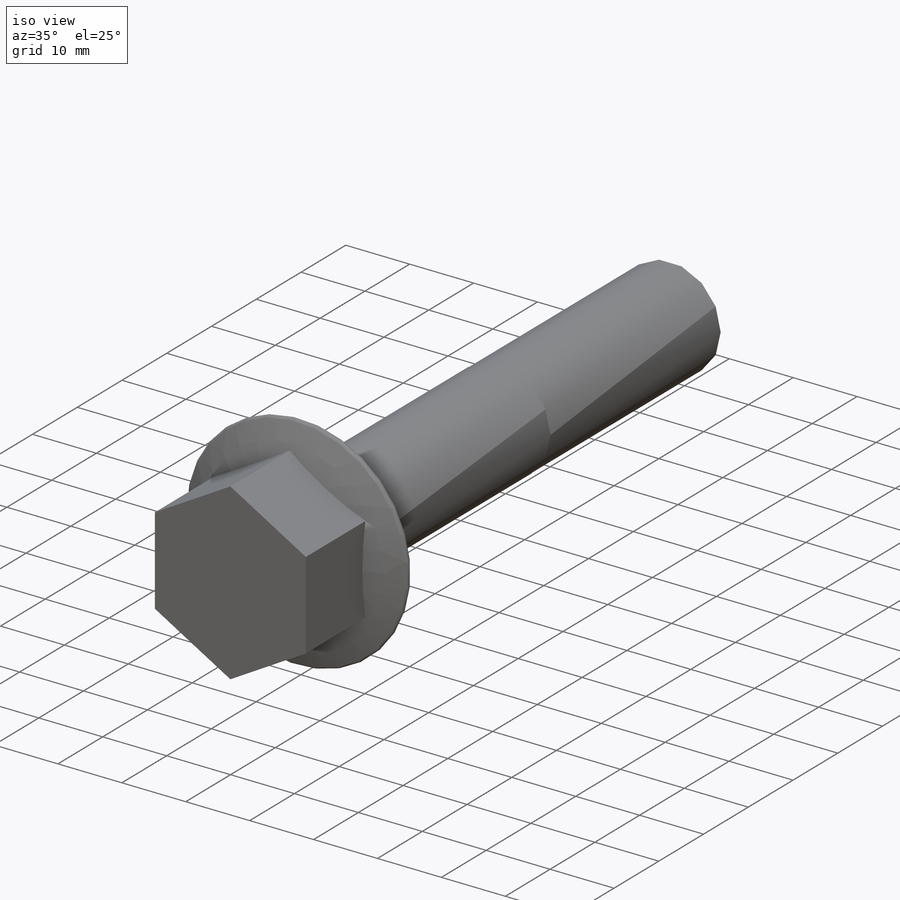
[diagram: iso view]
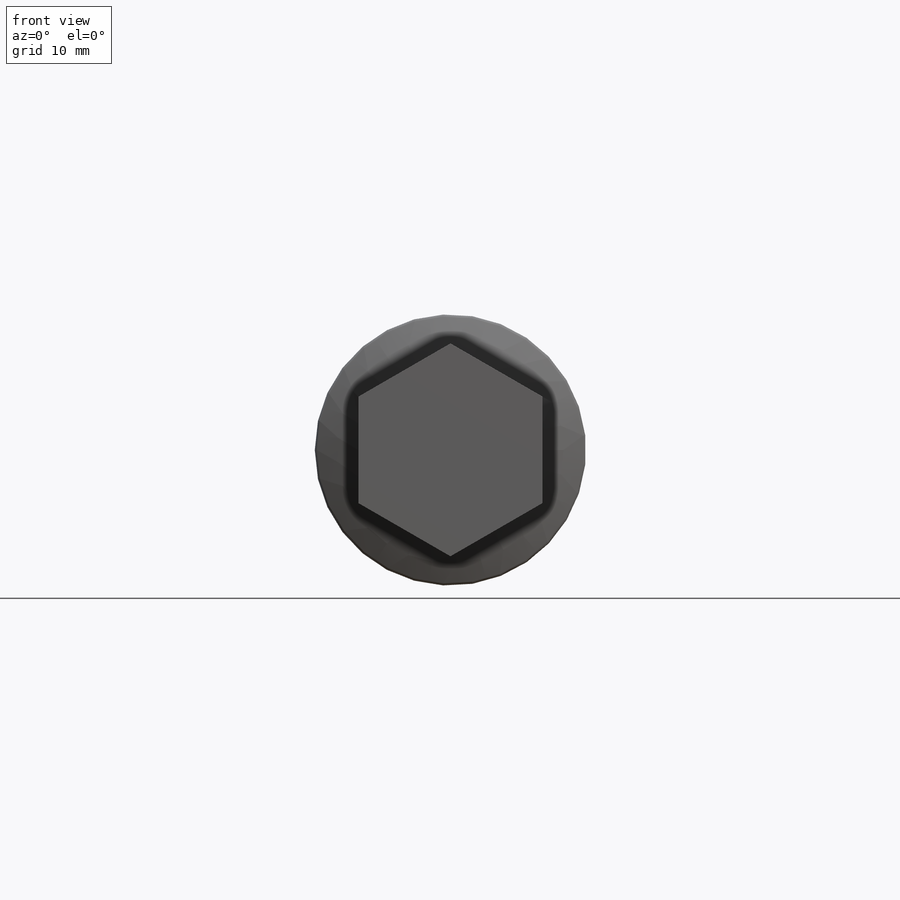
[diagram: front view]
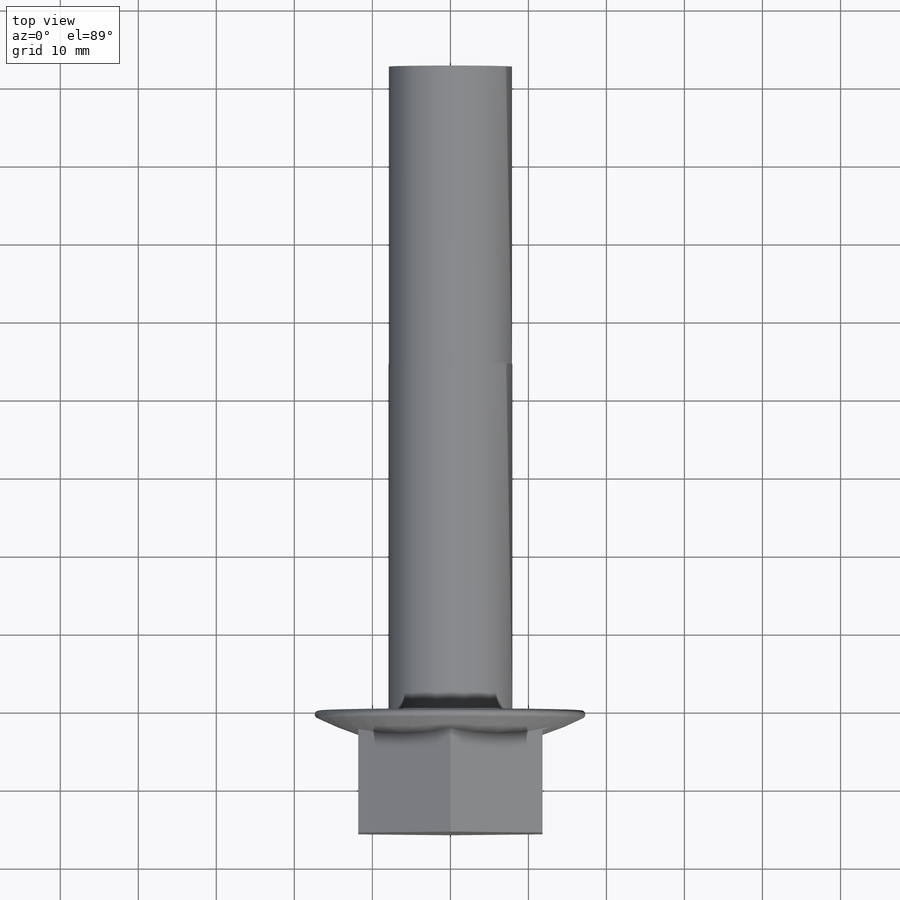
[diagram: top view]
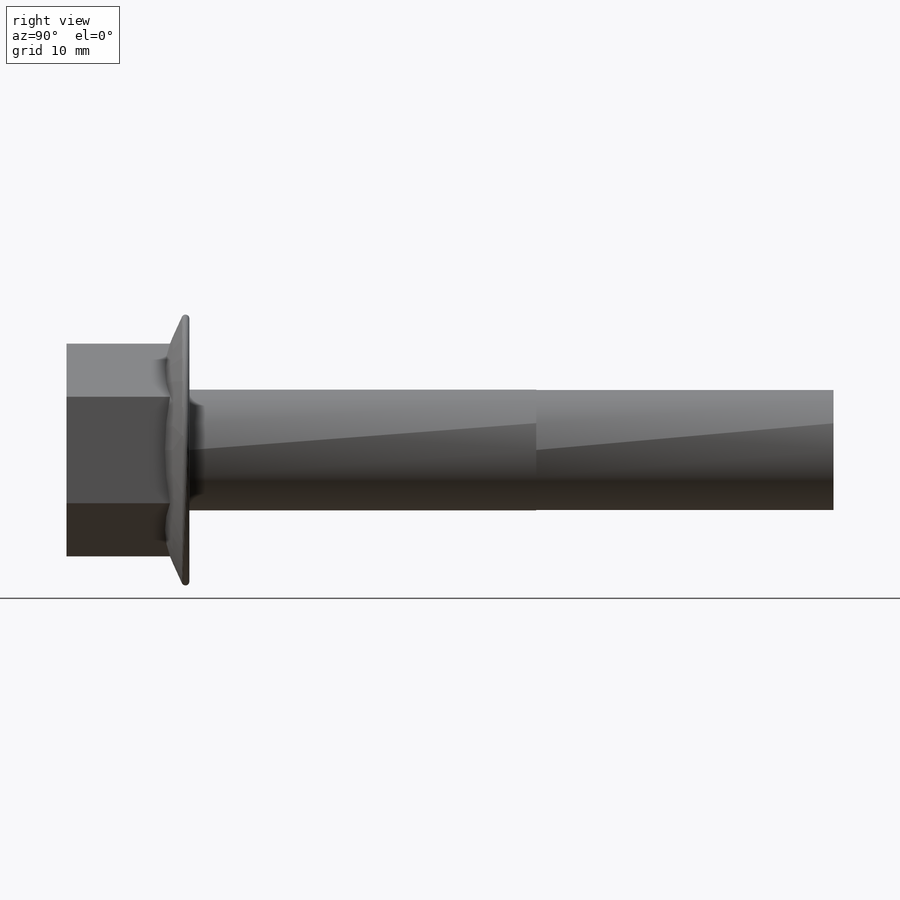
[diagram: right view]
SOLIDWORKS PART (.sldprt)
format: sldprt  version: not decoded by parser v0  size: 840,192 bytes
history: native  units: mm
features: sketch x4, plane x3, extrude x2, revolve x1, fillet x1, cut_revolve x1, thread x1 + 1 further entry (+6 scaffold rows collapsed)
feature tree (20):
  scaffold x6  (default folders/planes/origin — collapsed)
  plane  "Plane1"
  plane  "Plane2"
  plane  "Plane3"
  "Design Table"
  sketch  "Head Sketch"  dims[D1=60.0deg D2=60.0deg Width across flats=23.622mm]
  extrude  "Head"  Depth=15.748mm Head height=15.748mm
  sketch  "Shank Sketch"  dims[Shank diameter=15.875mm]
  extrude  "Shank"  Depth=69.85mm Shank length=69.85mm
  sketch  "Sketch3"  dims[c1.D1=~34.782901mm c1.D2=2.5mm c1.D3=17.0mm c2.D2=33.782mm c2.D3=5.0mm]
  revolve  "Flange"  Angle=360deg Flange diameter=33.782mm
  fillet  "Fillet2"  Radius=0.5mm
  sketch  "Thread End"  dims[c1.D1=1.0mm c1.D2=1.1mm c2.D1=0.05mm c2.Length of thread=38.1mm]
  cut_revolve  "Thread Cut"  [1 undecoded]
  thread  "Cosmetic Thread2"  Diameter=11mm  [1 undecoded]
decode coverage: 9 of 10 modeling features carry decoded parameters; 1 rows unclassified (native names shown)
note: ~ marks probable driven/reference dimensions
note: 2 parameter values undecoded
note: suppression state not decoded; provenance and decode notes live in map.json
